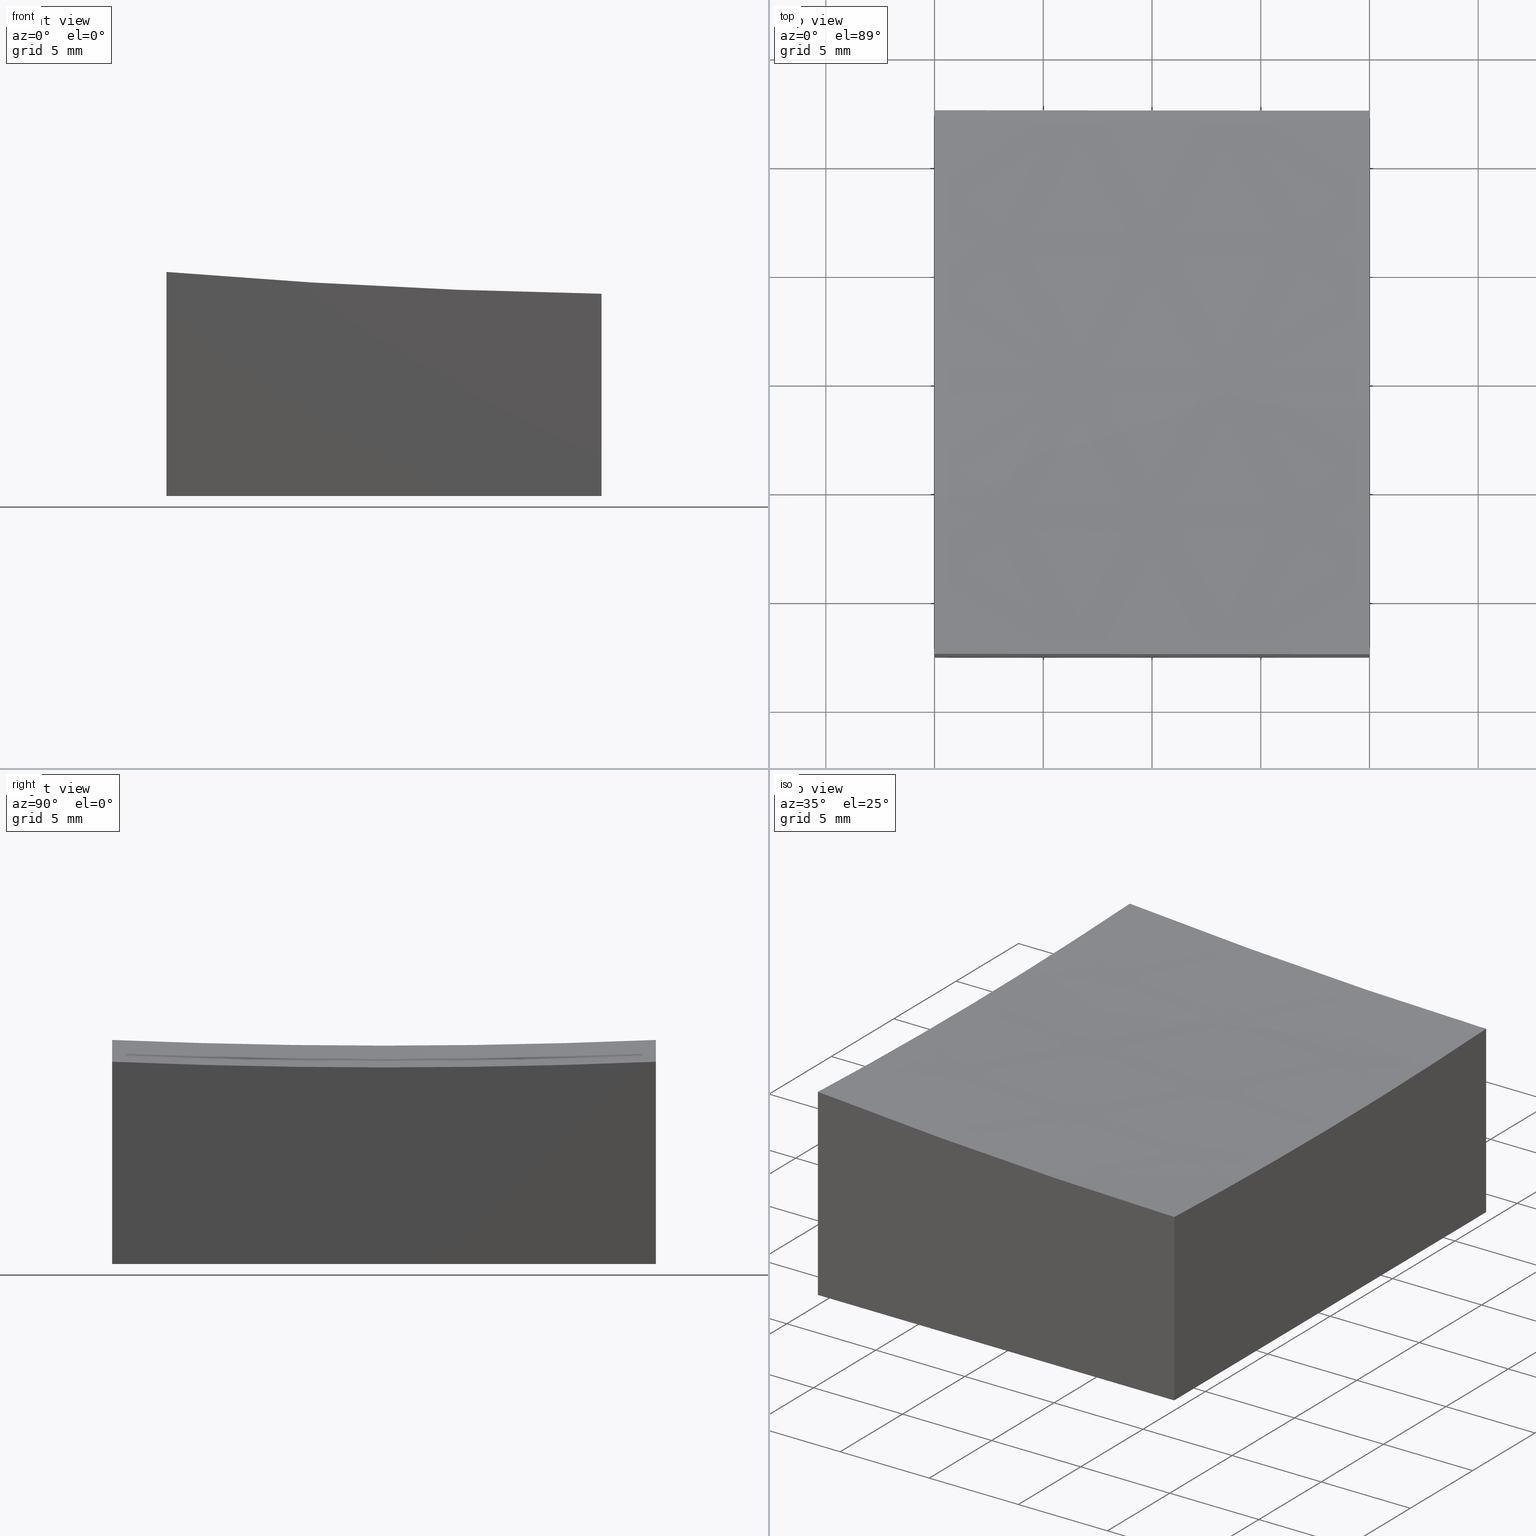
[diagram: canonical four-view strip — front | top / right | iso, engineering-drawing reading convention]
A machine part, canonical four-view strip (front | top / right | iso — engineering-drawing reading convention). The complete STEP part file that produces these views, byte-faithful:
ISO-10303-21;
HEADER;
FILE_DESCRIPTION (( 'STEP AP203' ),
    '1' );
FILE_NAME ('270646.step',
    '2024-12-24T02:22:11',
    ( '' ),
    ( '' ),
    'SwSTEP 2.0',
    'SolidWorks 2020',
    '' );
FILE_SCHEMA (( 'CONFIG_CONTROL_DESIGN' ));
ENDSEC;

DATA;
#1 =( GEOMETRIC_REPRESENTATION_CONTEXT ( 3 ) GLOBAL_UNCERTAINTY_ASSIGNED_CONTEXT ( ( #214 ) ) GLOBAL_UNIT_ASSIGNED_CONTEXT ( ( #8, #246, #197 ) ) REPRESENTATION_CONTEXT ( 'NONE', 'WORKASPACE' ) );
#2 = ORIENTED_EDGE ( 'NONE', *, *, #87, .T. ) ;
#3 = CC_DESIGN_PERSON_AND_ORGANIZATION_ASSIGNMENT ( #186, #204, ( #133 ) ) ;
#4 = APPROVAL_STATUS ( 'not_yet_approved' ) ;
#5 = CARTESIAN_POINT ( 'NONE',  ( 15.00000000000004086, -12.49999999999999822, 299.0000000000000000 ) ) ;
#6 = DIRECTION ( 'NONE',  ( 1.734723475976807094E-16, -1.000000000000000000, 0.000000000000000000 ) ) ;
#7 = CALENDAR_DATE ( 2024, 24, 12 ) ;
#8 =( LENGTH_UNIT ( ) NAMED_UNIT ( * ) SI_UNIT ( .MILLI., .METRE. ) );
#9 = VERTEX_POINT ( 'NONE', #179 ) ;
#10 = COORDINATED_UNIVERSAL_TIME_OFFSET ( 8, 0, .AHEAD. ) ;
#11 = CARTESIAN_POINT ( 'NONE',  ( -9.999999999999998224, -12.50000000000000355, 10.00000000000000000 ) ) ;
#12 = DIRECTION ( 'NONE',  ( -0.000000000000000000, -1.000000000000000000, -0.000000000000000000 ) ) ;
#13 = DATE_TIME_ROLE ( 'creation_date' ) ;
#14 = VECTOR ( 'NONE', #12, 1000.000000000000000 ) ;
#15 = ADVANCED_FACE ( 'NONE', ( #109 ), #112, .F. ) ;
#16 = ORIENTED_EDGE ( 'NONE', *, *, #39, .F. ) ;
#17 = APPROVAL_PERSON_ORGANIZATION ( #180, #178, #223 ) ;
#18 = CARTESIAN_POINT ( 'NONE',  ( 0.000000000000000000, 0.000000000000000000, -10.00000000000000000 ) ) ;
#19 = VECTOR ( 'NONE', #101, 1000.000000000000000 ) ;
#20 = CC_DESIGN_APPROVAL ( #53, ( #57 ) ) ;
#21 = CARTESIAN_POINT ( 'NONE',  ( -9.999999999999998224, 12.49999999999999645, -10.00000000000000000 ) ) ;
#22 = CARTESIAN_POINT ( 'NONE',  ( -9.999999999999998224, -12.50000000000000355, -10.00000000000000000 ) ) ;
#23 = PLANE ( 'NONE',  #55 ) ;
#24 = DIRECTION ( 'NONE',  ( 0.000000000000000000, 0.000000000000000000, 1.000000000000000000 ) ) ;
#25 = FACE_OUTER_BOUND ( 'NONE', #232, .T. ) ;
#26 = ORIENTED_EDGE ( 'NONE', *, *, #39, .T. ) ;
#27 = CARTESIAN_POINT ( 'NONE',  ( 10.00000000000000178, -12.50000000000000000, -10.00000000000000000 ) ) ;
#28 = APPLICATION_PROTOCOL_DEFINITION ( 'international standard', 'config_control_design', 1994, #86 ) ;
#29 = CARTESIAN_POINT ( 'NONE',  ( -9.999999999999996447, 0.000000000000000000, 299.0000000000000000 ) ) ;
#30 = PERSON_AND_ORGANIZATION ( #212, #103 ) ;
#31 = PERSON_AND_ORGANIZATION_ROLE ( 'creator' ) ;
#32 = CC_DESIGN_PERSON_AND_ORGANIZATION_ASSIGNMENT ( #76, #31, ( #183 ) ) ;
#33 = ADVANCED_FACE ( 'NONE', ( #129 ), #194, .F. ) ;
#34 = VECTOR ( 'NONE', #243, 1000.000000000000000 ) ;
#35 = ORIENTED_EDGE ( 'NONE', *, *, #149, .F. ) ;
#36 = ORIENTED_EDGE ( 'NONE', *, *, #192, .F. ) ;
#37 = ORIENTED_EDGE ( 'NONE', *, *, #173, .F. ) ;
#38 = ORIENTED_EDGE ( 'NONE', *, *, #258, .F. ) ;
#39 = EDGE_CURVE ( 'NONE', #247, #128, #130, .T. ) ;
#40 = ADVANCED_BREP_SHAPE_REPRESENTATION ( '270646', ( #275, #191 ), #1 ) ;
#41 = CARTESIAN_POINT ( 'NONE',  ( -9.999999999999998224, -12.50000000000000355, 10.00000000000000000 ) ) ;
#42 = VERTEX_POINT ( 'NONE', #220 ) ;
#43 = CARTESIAN_POINT ( 'NONE',  ( 15.00000000000003908, 0.000000000000000000, 299.0000000000000000 ) ) ;
#44 = VECTOR ( 'NONE', #264, 1000.000000000000000 ) ;
#45 = LOCAL_TIME ( 10, 22, 11.00000000000000000, #118 ) ;
#46 = MECHANICAL_CONTEXT ( 'NONE', #86, 'mechanical' ) ;
#47 = CARTESIAN_POINT ( 'NONE',  ( 10.00000000000000178, 12.50000000000000000, 10.00000000000000000 ) ) ;
#48 = LINE ( 'NONE', #27, #19 ) ;
#49 = LINE ( 'NONE', #96, #271 ) ;
#50 = AXIS2_PLACEMENT_3D ( 'NONE', #261, #240, #105 ) ;
#51 = DATE_TIME_ROLE ( 'classification_date' ) ;
#52 = DIRECTION ( 'NONE',  ( -1.734723475976807094E-16, 1.000000000000000000, 0.000000000000000000 ) ) ;
#53 = APPROVAL ( #4, 'δָ��' ) ;
#54 = APPROVAL_PERSON_ORGANIZATION ( #200, #123, #156 ) ;
#55 = AXIS2_PLACEMENT_3D ( 'NONE', #47, #6, #69 ) ;
#56 = ORIENTED_EDGE ( 'NONE', *, *, #88, .T. ) ;
#57 = SECURITY_CLASSIFICATION ( '', '', #165 ) ;
#58 = VERTEX_POINT ( 'NONE', #21 ) ;
#59 = CIRCLE ( 'NONE', #238, 300.0000000000000000 ) ;
#60 = VERTEX_POINT ( 'NONE', #107 ) ;
#61 = CC_DESIGN_DATE_AND_TIME_ASSIGNMENT ( #230, #13, ( #133 ) ) ;
#62 = EDGE_CURVE ( 'NONE', #128, #151, #49, .T. ) ;
#63 = CARTESIAN_POINT ( 'NONE',  ( 10.00000000000000178, -12.50000000000000000, 10.00000000000000000 ) ) ;
#64 = ADVANCED_FACE ( 'NONE', ( #202 ), #65, .F. ) ;
#65 = SPHERICAL_SURFACE ( 'NONE', #170, 300.0000000000000000 ) ;
#66 = COORDINATED_UNIVERSAL_TIME_OFFSET ( 8, 0, .AHEAD. ) ;
#67 = LINE ( 'NONE', #158, #34 ) ;
#68 = AXIS2_PLACEMENT_3D ( 'NONE', #142, #77, #228 ) ;
#69 = DIRECTION ( 'NONE',  ( 1.000000000000000000, 1.734723475976807094E-16, 0.000000000000000000 ) ) ;
#70 = EDGE_CURVE ( 'NONE', #60, #151, #90, .T. ) ;
#71 = DATE_AND_TIME ( #270, #94 ) ;
#72 = FACE_OUTER_BOUND ( 'NONE', #124, .T. ) ;
#73 = DIRECTION ( 'NONE',  ( 0.000000000000000000, 0.000000000000000000, 1.000000000000000000 ) ) ;
#74 = APPROVAL_ROLE ( '' ) ;
#75 = CARTESIAN_POINT ( 'NONE',  ( 15.00000000000003730, 12.50000000000000178, 299.0000000000000000 ) ) ;
#76 = PERSON_AND_ORGANIZATION ( #212, #103 ) ;
#77 = DIRECTION ( 'NONE',  ( 0.000000000000000000, 1.000000000000000000, -0.000000000000000000 ) ) ;
#78 = PRODUCT_RELATED_PRODUCT_CATEGORY ( 'detail', '', ( #137 ) ) ;
#79 = APPLICATION_CONTEXT ( 'configuration controlled 3d designs of mechanical parts and assemblies' ) ;
#80 = CIRCLE ( 'NONE', #193, 299.7394702070449171 ) ;
#81 = AXIS2_PLACEMENT_3D ( 'NONE', #218, #222, #266 ) ;
#82 = VERTEX_POINT ( 'NONE', #182 ) ;
#83 = ORIENTED_EDGE ( 'NONE', *, *, #119, .F. ) ;
#84 = EDGE_LOOP ( 'NONE', ( #231, #35, #171, #215 ) ) ;
#85 = ORIENTED_EDGE ( 'NONE', *, *, #176, .F. ) ;
#86 = APPLICATION_CONTEXT ( 'configuration controlled 3d designs of mechanical parts and assemblies' ) ;
#87 = EDGE_CURVE ( 'NONE', #82, #136, #134, .T. ) ;
#88 = EDGE_CURVE ( 'NONE', #225, #247, #209, .T. ) ;
#89 = DIRECTION ( 'NONE',  ( -0.000000000000000000, -0.000000000000000000, -1.000000000000000000 ) ) ;
#90 = LINE ( 'NONE', #153, #115 ) ;
#91 = CARTESIAN_POINT ( 'NONE',  ( 10.00000000000000178, -12.50000000000000000, -0.6977644227598167603 ) ) ;
#92 = ORIENTED_EDGE ( 'NONE', *, *, #211, .F. ) ;
#93 = COORDINATED_UNIVERSAL_TIME_OFFSET ( 8, 0, .AHEAD. ) ;
#94 = LOCAL_TIME ( 10, 22, 11.00000000000000000, #93 ) ;
#95 = LINE ( 'NONE', #229, #144 ) ;
#96 = CARTESIAN_POINT ( 'NONE',  ( 10.00000000000000178, -12.50000000000000000, -10.00000000000000000 ) ) ;
#97 = DATE_AND_TIME ( #190, #216 ) ;
#98 = CARTESIAN_POINT ( 'NONE',  ( -9.999999999999996447, 0.000000000000000000, 299.0000000000000000 ) ) ;
#99 = PERSON_AND_ORGANIZATION_ROLE ( 'design_owner' ) ;
#100 = CC_DESIGN_DATE_AND_TIME_ASSIGNMENT ( #208, #51, ( #57 ) ) ;
#101 = DIRECTION ( 'NONE',  ( 1.000000000000000000, 1.734723475976807094E-16, -0.000000000000000000 ) ) ;
#102 = APPROVAL_DATE_TIME ( #97, #123 ) ;
#103 = ORGANIZATION ( 'δָ��', 'δָ��', '' ) ;
#104 = ADVANCED_FACE ( 'NONE', ( #177 ), #23, .F. ) ;
#105 = DIRECTION ( 'NONE',  ( 0.000000000000000000, 0.000000000000000000, 1.000000000000000000 ) ) ;
#106 = CC_DESIGN_APPROVAL ( #123, ( #183 ) ) ;
#107 = CARTESIAN_POINT ( 'NONE',  ( 10.00000000000000178, 12.50000000000000000, -0.6977644227597612492 ) ) ;
#108 = DIRECTION ( 'NONE',  ( -1.000000000000000000, -1.734723475976807094E-16, 0.000000000000000000 ) ) ;
#109 = FACE_OUTER_BOUND ( 'NONE', #148, .T. ) ;
#110 = APPROVAL_DATE_TIME ( #262, #178 ) ;
#111 = DIRECTION ( 'NONE',  ( 1.734723475976807094E-16, -1.000000000000000000, 0.000000000000000000 ) ) ;
#112 = PLANE ( 'NONE',  #174 ) ;
#113 = APPROVAL_STATUS ( 'not_yet_approved' ) ;
#114 = DIRECTION ( 'NONE',  ( 0.000000000000000000, 0.000000000000000000, -1.000000000000000000 ) ) ;
#115 = VECTOR ( 'NONE', #239, 1000.000000000000000 ) ;
#116 = APPLICATION_PROTOCOL_DEFINITION ( 'international standard', 'config_control_design', 1994, #79 ) ;
#117 = DIRECTION ( 'NONE',  ( 0.000000000000000000, 0.000000000000000000, -1.000000000000000000 ) ) ;
#118 = COORDINATED_UNIVERSAL_TIME_OFFSET ( 8, 0, .AHEAD. ) ;
#119 = EDGE_CURVE ( 'NONE', #60, #225, #277, .T. ) ;
#120 = ADVANCED_FACE ( 'NONE', ( #72 ), #181, .F. ) ;
#121 = AXIS2_PLACEMENT_3D ( 'NONE', #159, #185, #73 ) ;
#122 = ORIENTED_EDGE ( 'NONE', *, *, #119, .T. ) ;
#123 = APPROVAL ( #163, 'δָ��' ) ;
#124 = EDGE_LOOP ( 'NONE', ( #235, #146, #196, #255, #236 ) ) ;
#125 = DESIGN_CONTEXT ( 'detailed design', #79, 'design' ) ;
#126 = ORIENTED_EDGE ( 'NONE', *, *, #176, .T. ) ;
#127 = CIRCLE ( 'NONE', #233, 299.7394702070449171 ) ;
#128 = VERTEX_POINT ( 'NONE', #221 ) ;
#129 = FACE_OUTER_BOUND ( 'NONE', #257, .T. ) ;
#130 = LINE ( 'NONE', #63, #234 ) ;
#131 = DIRECTION ( 'NONE',  ( 0.000000000000000000, -1.000000000000000000, 0.000000000000000000 ) ) ;
#132 = CC_DESIGN_SECURITY_CLASSIFICATION ( #57, ( #183 ) ) ;
#133 = PRODUCT_DEFINITION ( 'δ֪', '', #183, #125 ) ;
#134 = LINE ( 'NONE', #41, #44 ) ;
#135 = DIRECTION ( 'NONE',  ( 0.000000000000000000, 0.000000000000000000, -1.000000000000000000 ) ) ;
#136 = VERTEX_POINT ( 'NONE', #22 ) ;
#137 = PRODUCT ( '270646', '270646', '', ( #46 ) ) ;
#138 = DIRECTION ( 'NONE',  ( 1.000000000000000000, 1.736231275892908730E-16, 0.000000000000000000 ) ) ;
#139 = DIRECTION ( 'NONE',  ( -1.000000000000000000, 0.000000000000000000, 0.000000000000000000 ) ) ;
#140 = ADVANCED_FACE ( 'NONE', ( #268 ), #248, .F. ) ;
#141 = CALENDAR_DATE ( 2024, 24, 12 ) ;
#142 = CARTESIAN_POINT ( 'NONE',  ( 15.00000000000003908, 0.000000000000000000, 299.0000000000000000 ) ) ;
#143 = PERSON_AND_ORGANIZATION ( #212, #103 ) ;
#144 = VECTOR ( 'NONE', #108, 1000.000000000000000 ) ;
#145 = ORIENTED_EDGE ( 'NONE', *, *, #219, .T. ) ;
#146 = ORIENTED_EDGE ( 'NONE', *, *, #149, .T. ) ;
#147 = CIRCLE ( 'NONE', #169, 298.9565185775349505 ) ;
#148 = EDGE_LOOP ( 'NONE', ( #37, #92, #172, #85 ) ) ;
#149 = EDGE_CURVE ( 'NONE', #82, #9, #217, .T. ) ;
#150 = ORIENTED_EDGE ( 'NONE', *, *, #62, .T. ) ;
#151 = VERTEX_POINT ( 'NONE', #224 ) ;
#152 = CARTESIAN_POINT ( 'NONE',  ( 15.00000000000003908, 0.000000000000000000, 299.0000000000000000 ) ) ;
#153 = CARTESIAN_POINT ( 'NONE',  ( 10.00000000000000178, 12.50000000000000000, 10.00000000000000000 ) ) ;
#154 = DIRECTION ( 'NONE',  ( 0.000000000000000000, 1.000000000000000000, -0.000000000000000000 ) ) ;
#155 = LOCAL_TIME ( 10, 22, 11.00000000000000000, #66 ) ;
#156 = APPROVAL_ROLE ( '' ) ;
#157 = AXIS2_PLACEMENT_3D ( 'NONE', #11, #269, #117 ) ;
#158 = CARTESIAN_POINT ( 'NONE',  ( -9.999999999999998224, 12.49999999999999645, 10.00000000000000000 ) ) ;
#159 = CARTESIAN_POINT ( 'NONE',  ( 10.00000000000000178, 0.000000000000000000, 299.0000000000000000 ) ) ;
#160 = SHAPE_DEFINITION_REPRESENTATION ( #168, #40 ) ;
#161 = CARTESIAN_POINT ( 'NONE',  ( 10.00000000000000178, 0.000000000000000000, -0.9583304394129021908 ) ) ;
#162 = EDGE_LOOP ( 'NONE', ( #272, #213, #83, #36 ) ) ;
#163 = APPROVAL_STATUS ( 'not_yet_approved' ) ;
#164 = CARTESIAN_POINT ( 'NONE',  ( 10.00000000000000178, -12.50000000000000000, 10.00000000000000000 ) ) ;
#165 = SECURITY_CLASSIFICATION_LEVEL ( 'unclassified' ) ;
#166 = CARTESIAN_POINT ( 'NONE',  ( -9.999999999999998224, -12.50000000000000355, -10.00000000000000000 ) ) ;
#167 = APPROVAL_DATE_TIME ( #71, #53 ) ;
#168 = PRODUCT_DEFINITION_SHAPE ( 'NONE', 'NONE',  #133 ) ;
#169 = AXIS2_PLACEMENT_3D ( 'NONE', #98, #187, #263 ) ;
#170 = AXIS2_PLACEMENT_3D ( 'NONE', #152, #154, #139 ) ;
#171 = ORIENTED_EDGE ( 'NONE', *, *, #219, .F. ) ;
#172 = ORIENTED_EDGE ( 'NONE', *, *, #62, .F. ) ;
#173 = EDGE_CURVE ( 'NONE', #58, #136, #207, .T. ) ;
#174 = AXIS2_PLACEMENT_3D ( 'NONE', #18, #244, #242 ) ;
#175 = ORIENTED_EDGE ( 'NONE', *, *, #211, .T. ) ;
#176 = EDGE_CURVE ( 'NONE', #136, #128, #48, .T. ) ;
#177 = FACE_OUTER_BOUND ( 'NONE', #274, .T. ) ;
#178 = APPROVAL ( #113, 'δָ��' ) ;
#179 = CARTESIAN_POINT ( 'NONE',  ( -9.999999999999996447, 0.000000000000000000, 0.04348142246501929264 ) ) ;
#180 = PERSON_AND_ORGANIZATION ( #212, #103 ) ;
#181 = PLANE ( 'NONE',  #157 ) ;
#182 = CARTESIAN_POINT ( 'NONE',  ( -9.999999999999998224, -12.50000000000000355, 0.3049213662870142727 ) ) ;
#183 = PRODUCT_DEFINITION_FORMATION_WITH_SPECIFIED_SOURCE ( '�κ�', '', #137, .NOT_KNOWN. ) ;
#184 = PERSON_AND_ORGANIZATION ( #212, #103 ) ;
#185 = DIRECTION ( 'NONE',  ( -1.000000000000000000, 0.000000000000000000, 0.000000000000000000 ) ) ;
#186 = PERSON_AND_ORGANIZATION ( #212, #103 ) ;
#187 = DIRECTION ( 'NONE',  ( 1.000000000000000000, 0.000000000000000000, 0.000000000000000000 ) ) ;
#188 = COORDINATED_UNIVERSAL_TIME_OFFSET ( 8, 0, .AHEAD. ) ;
#189 = CC_DESIGN_APPROVAL ( #178, ( #133 ) ) ;
#190 = CALENDAR_DATE ( 2024, 24, 12 ) ;
#191 = AXIS2_PLACEMENT_3D ( 'NONE', #265, #24, #245 ) ;
#192 = EDGE_CURVE ( 'NONE', #42, #60, #80, .T. ) ;
#193 = AXIS2_PLACEMENT_3D ( 'NONE', #75, #111, #138 ) ;
#194 = PLANE ( 'NONE',  #50 ) ;
#195 = ADVANCED_FACE ( 'NONE', ( #25 ), #251, .F. ) ;
#196 = ORIENTED_EDGE ( 'NONE', *, *, #256, .T. ) ;
#197 =( NAMED_UNIT ( * ) SI_UNIT ( $, .STERADIAN. ) SOLID_ANGLE_UNIT ( ) );
#198 = DIRECTION ( 'NONE',  ( 1.000000000000000000, 0.000000000000000000, 0.000000000000000000 ) ) ;
#199 = DIRECTION ( 'NONE',  ( 0.000000000000000000, 1.000000000000000000, 0.000000000000000000 ) ) ;
#200 = PERSON_AND_ORGANIZATION ( #212, #103 ) ;
#201 = DIRECTION ( 'NONE',  ( -1.000000000000000000, -1.734723475976807094E-16, 0.000000000000000000 ) ) ;
#202 = FACE_OUTER_BOUND ( 'NONE', #84, .T. ) ;
#203 = APPROVAL_PERSON_ORGANIZATION ( #184, #53, #74 ) ;
#204 = PERSON_AND_ORGANIZATION_ROLE ( 'creator' ) ;
#205 = DIRECTION ( 'NONE',  ( -1.734723475976807094E-16, 1.000000000000000000, 0.000000000000000000 ) ) ;
#206 = CALENDAR_DATE ( 2024, 24, 12 ) ;
#207 = LINE ( 'NONE', #166, #14 ) ;
#208 = DATE_AND_TIME ( #7, #45 ) ;
#209 = CIRCLE ( 'NONE', #81, 299.9583304394128618 ) ;
#210 = AXIS2_PLACEMENT_3D ( 'NONE', #164, #52, #201 ) ;
#211 = EDGE_CURVE ( 'NONE', #151, #58, #95, .T. ) ;
#212 = PERSON ( 'δָ��', 'δָ��', 'δָ��', ('δָ��'), ('δָ��'), ('δָ��') ) ;
#213 = ORIENTED_EDGE ( 'NONE', *, *, #252, .T. ) ;
#214 = UNCERTAINTY_MEASURE_WITH_UNIT (LENGTH_MEASURE( 1.000000000000000082E-05 ), #8, 'distance_accuracy_value', 'NONE');
#215 = ORIENTED_EDGE ( 'NONE', *, *, #88, .F. ) ;
#216 = LOCAL_TIME ( 10, 22, 11.00000000000000000, #10 ) ;
#217 = CIRCLE ( 'NONE', #249, 298.9565185775349505 ) ;
#218 = CARTESIAN_POINT ( 'NONE',  ( 10.00000000000000178, 0.000000000000000000, 299.0000000000000000 ) ) ;
#219 = EDGE_CURVE ( 'NONE', #247, #82, #127, .T. ) ;
#220 = CARTESIAN_POINT ( 'NONE',  ( -9.999999999999998224, 12.49999999999999645, 0.3049213662870142727 ) ) ;
#221 = CARTESIAN_POINT ( 'NONE',  ( 10.00000000000000178, -12.50000000000000000, -10.00000000000000000 ) ) ;
#222 = DIRECTION ( 'NONE',  ( -1.000000000000000000, 0.000000000000000000, 0.000000000000000000 ) ) ;
#223 = APPROVAL_ROLE ( '' ) ;
#224 = CARTESIAN_POINT ( 'NONE',  ( 10.00000000000000178, 12.50000000000000000, -10.00000000000000000 ) ) ;
#225 = VERTEX_POINT ( 'NONE', #161 ) ;
#226 = PERSON_AND_ORGANIZATION_ROLE ( 'classification_officer' ) ;
#227 = CLOSED_SHELL ( 'NONE', ( #140, #120, #195, #33, #104, #15, #64 ) ) ;
#228 = DIRECTION ( 'NONE',  ( -1.000000000000000000, 0.000000000000000000, 0.000000000000000000 ) ) ;
#229 = CARTESIAN_POINT ( 'NONE',  ( 10.00000000000000178, 12.50000000000000000, -10.00000000000000000 ) ) ;
#230 = DATE_AND_TIME ( #141, #254 ) ;
#231 = ORIENTED_EDGE ( 'NONE', *, *, #252, .F. ) ;
#232 = EDGE_LOOP ( 'NONE', ( #16, #145, #2, #126 ) ) ;
#233 = AXIS2_PLACEMENT_3D ( 'NONE', #5, #205, #241 ) ;
#234 = VECTOR ( 'NONE', #89, 1000.000000000000000 ) ;
#235 = ORIENTED_EDGE ( 'NONE', *, *, #87, .F. ) ;
#236 = ORIENTED_EDGE ( 'NONE', *, *, #173, .T. ) ;
#237 = ORIENTED_EDGE ( 'NONE', *, *, #70, .F. ) ;
#238 = AXIS2_PLACEMENT_3D ( 'NONE', #43, #131, #135 ) ;
#239 = DIRECTION ( 'NONE',  ( -0.000000000000000000, -0.000000000000000000, -1.000000000000000000 ) ) ;
#240 = DIRECTION ( 'NONE',  ( -1.000000000000000000, 0.000000000000000000, 0.000000000000000000 ) ) ;
#241 = DIRECTION ( 'NONE',  ( -1.000000000000000000, -1.736231275892908730E-16, 0.000000000000000000 ) ) ;
#242 = DIRECTION ( 'NONE',  ( 1.000000000000000000, 0.000000000000000000, -0.000000000000000000 ) ) ;
#243 = DIRECTION ( 'NONE',  ( -0.000000000000000000, -0.000000000000000000, -1.000000000000000000 ) ) ;
#244 = DIRECTION ( 'NONE',  ( 0.000000000000000000, -0.000000000000000000, 1.000000000000000000 ) ) ;
#245 = DIRECTION ( 'NONE',  ( 1.000000000000000000, 0.000000000000000000, 0.000000000000000000 ) ) ;
#246 =( NAMED_UNIT ( * ) PLANE_ANGLE_UNIT ( ) SI_UNIT ( $, .RADIAN. ) );
#247 = VERTEX_POINT ( 'NONE', #91 ) ;
#248 = SPHERICAL_SURFACE ( 'NONE', #68, 300.0000000000000000 ) ;
#249 = AXIS2_PLACEMENT_3D ( 'NONE', #29, #198, #114 ) ;
#250 = PERSON_AND_ORGANIZATION ( #212, #103 ) ;
#251 = PLANE ( 'NONE',  #210 ) ;
#252 = EDGE_CURVE ( 'NONE', #9, #225, #59, .T. ) ;
#253 = CC_DESIGN_PERSON_AND_ORGANIZATION_ASSIGNMENT ( #143, #99, ( #137 ) ) ;
#254 = LOCAL_TIME ( 10, 22, 11.00000000000000000, #188 ) ;
#255 = ORIENTED_EDGE ( 'NONE', *, *, #258, .T. ) ;
#256 = EDGE_CURVE ( 'NONE', #9, #42, #147, .T. ) ;
#257 = EDGE_LOOP ( 'NONE', ( #237, #122, #56, #26, #150 ) ) ;
#258 = EDGE_CURVE ( 'NONE', #42, #58, #67, .T. ) ;
#259 = ORIENTED_EDGE ( 'NONE', *, *, #192, .T. ) ;
#260 = CC_DESIGN_PERSON_AND_ORGANIZATION_ASSIGNMENT ( #250, #226, ( #57 ) ) ;
#261 = CARTESIAN_POINT ( 'NONE',  ( 10.00000000000000178, -12.50000000000000000, 10.00000000000000000 ) ) ;
#262 = DATE_AND_TIME ( #206, #155 ) ;
#263 = DIRECTION ( 'NONE',  ( 0.000000000000000000, 0.000000000000000000, -1.000000000000000000 ) ) ;
#264 = DIRECTION ( 'NONE',  ( -0.000000000000000000, -0.000000000000000000, -1.000000000000000000 ) ) ;
#265 = CARTESIAN_POINT ( 'NONE',  ( 0.000000000000000000, 0.000000000000000000, 0.000000000000000000 ) ) ;
#266 = DIRECTION ( 'NONE',  ( 0.000000000000000000, 0.000000000000000000, 1.000000000000000000 ) ) ;
#267 = PERSON_AND_ORGANIZATION_ROLE ( 'design_supplier' ) ;
#268 = FACE_OUTER_BOUND ( 'NONE', #162, .T. ) ;
#269 = DIRECTION ( 'NONE',  ( 1.000000000000000000, 0.000000000000000000, 0.000000000000000000 ) ) ;
#270 = CALENDAR_DATE ( 2024, 24, 12 ) ;
#271 = VECTOR ( 'NONE', #199, 1000.000000000000000 ) ;
#272 = ORIENTED_EDGE ( 'NONE', *, *, #256, .F. ) ;
#273 = CC_DESIGN_PERSON_AND_ORGANIZATION_ASSIGNMENT ( #30, #267, ( #183 ) ) ;
#274 = EDGE_LOOP ( 'NONE', ( #38, #259, #276, #175 ) ) ;
#275 = MANIFOLD_SOLID_BREP ( '�г�-��ת8', #227 ) ;
#276 = ORIENTED_EDGE ( 'NONE', *, *, #70, .T. ) ;
#277 = CIRCLE ( 'NONE', #121, 299.9583304394128618 ) ;
ENDSEC;
END-ISO-10303-21;
